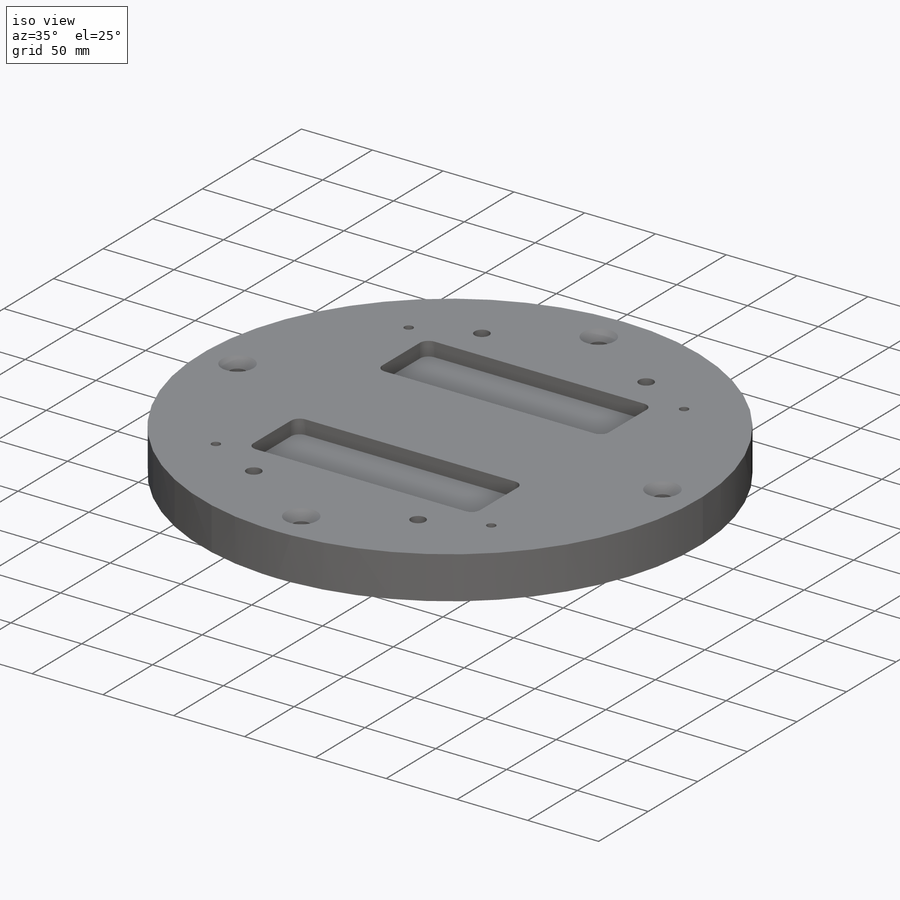
[diagram: iso view]
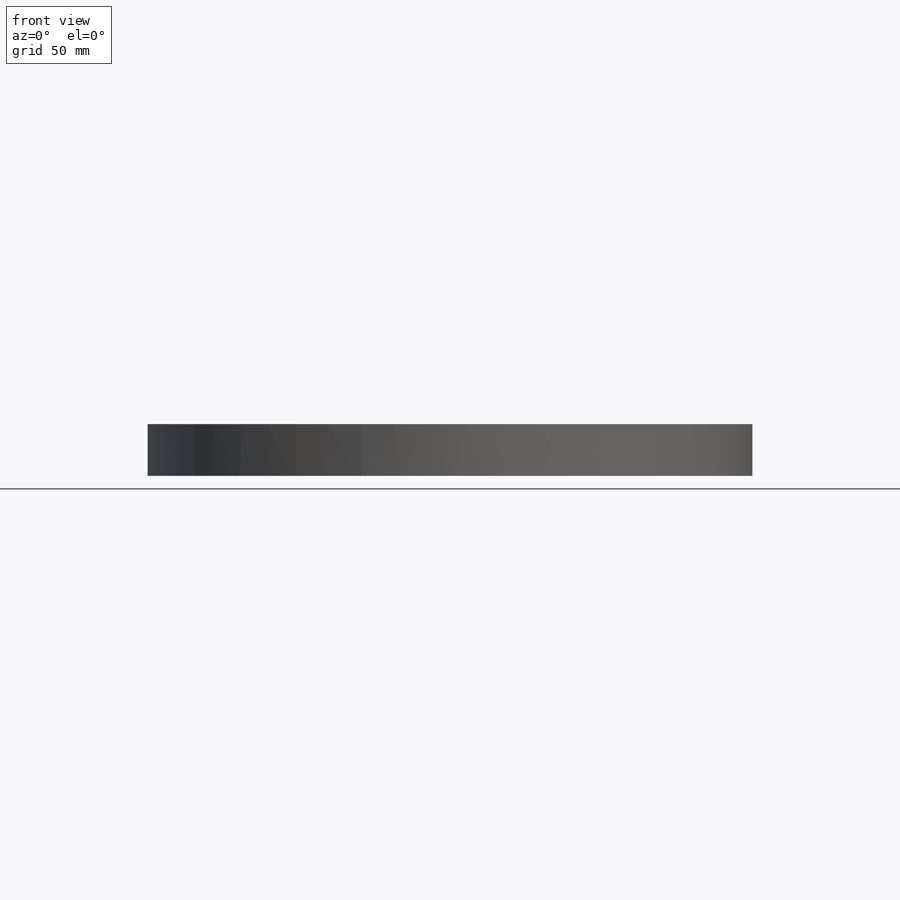
[diagram: front view]
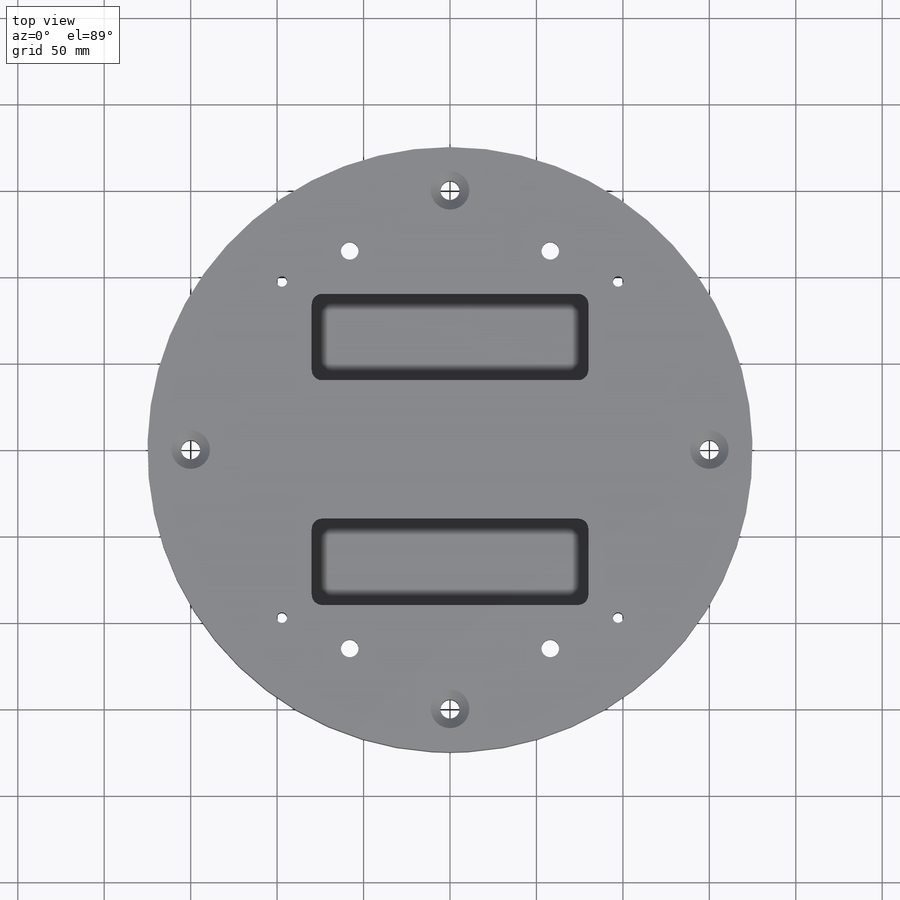
[diagram: top view]
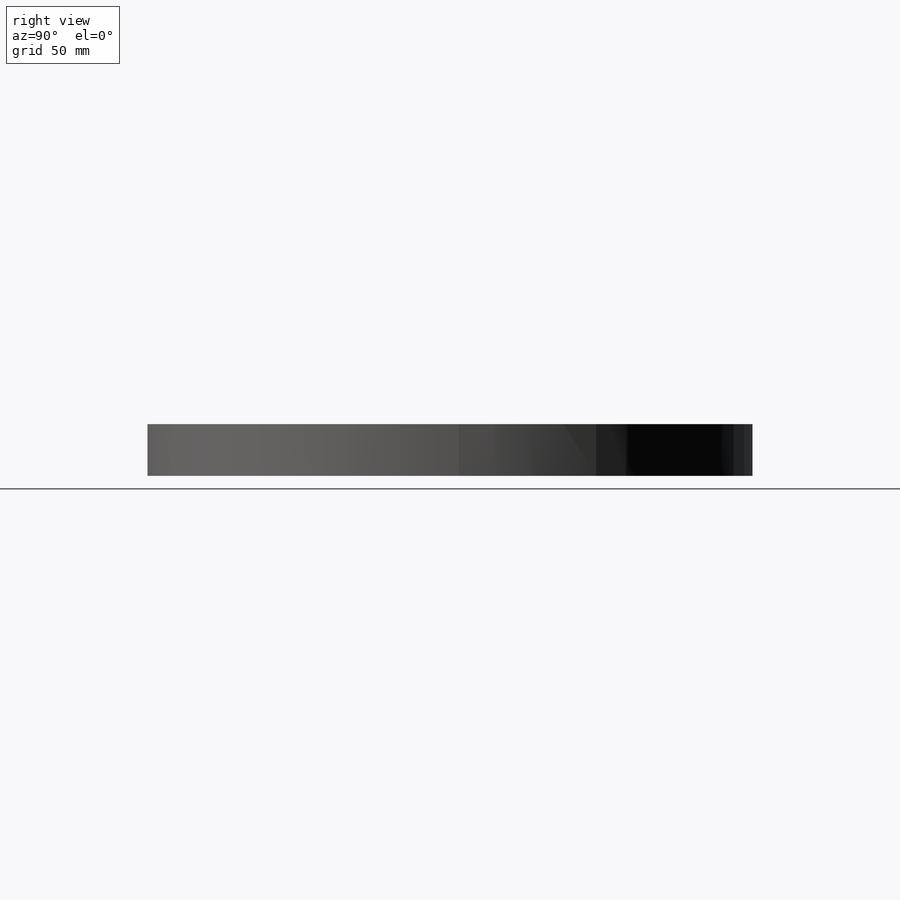
[diagram: right view]
SOLIDWORKS PART (.sldprt)
format: sldprt  version: not decoded by parser v0  size: 385,024 bytes
history: native  units: mm
features: sketch x15, hole x3, material x1, extrude x1, cut_extrude x1 (+12 scaffold rows collapsed)
feature tree (33):
  scaffold x12  (default folders/planes/origin — collapsed)
  material  "Material <not specified>"
  sketch  "Sketch1"  dims[D1=~150.41574mm]
  extrude  "Boss-Extrude1"  Depth=30mm
  sketch  "Sketch2"  dims[c1.D1=300.0mm c1.D6=300.0mm c2.D1=150.0mm c2.D2=150.0mm c2.D3=~212.132034mm c2.D4=350.0mm c3.D4=45.0deg c3.D5=~247.44319mm c4.D4=175.0mm c5.D4=70.0deg c5.D5=0.0mm c5.D1=90.0deg c5.D2=90.0deg c5.D3=90.0deg]
  hole  "CSK for M10 SFHCS1"  Diameter=11mm Depth=30mm
  sketch  "Sketch4"
  sketch  "Sketch3"  dims[hole-wizard template sketch: 54 standard entries collapsed; hole parameters kept: c17.Thru Hole Dia.=11.0mm c17.Thru Hole Depth=30.0mm c17.Near C'Sink Dia.=22.4mm c17.D4=~3.666174mm c17.Near C'Sink Angle=90.0deg]
  sketch  "Sketch5"  dims[D1=160.0mm D2=160.0mm D3=15.01mm D4=15.01mm]
  sketch  "Sketch6"
  sketch  "Sketch7"
  sketch  "Sketch8"  dims[D1=175.0mm]
  hole  "Ø6.0mm Dowel Hole1"  Diameter=6mm Depth=30mm
  sketch  "Sketch10"
  sketch  "Sketch11"  dims[hole-wizard template sketch: 60 standard entries collapsed; hole parameters kept: c18.Thru Hole Depth=30.0mm]
  sketch  "Sketch12"
  sketch  "Sketch14"  dims[D4=6.0mm D5=6.0mm D1=0.0mm D2=50.0mm D3=40.0mm]
  cut_extrude  "Cut-Extrude2"  Depth=10mm
  sketch  "Sketch18"
  hole  "Tap Drill for M12x1.75 Tap1"  Diameter=10.2mm Depth=30mm
  sketch  "Sketch20"
  sketch  "Sketch21"  dims[hole-wizard template sketch: 54 standard entries collapsed; hole parameters kept: c17.Thru Hole Dia.=10.2mm c17.Thru Hole Depth=30.0mm c17.Far C'Sink Dia.=25.0mm c17.D4=~2.963249mm c17.Far C'Sink Angle=70.0deg]
decode coverage: 13 of 20 modeling features carry decoded parameters
note: ~ marks probable driven/reference dimensions
note: suppression state not decoded; provenance and decode notes live in map.json
